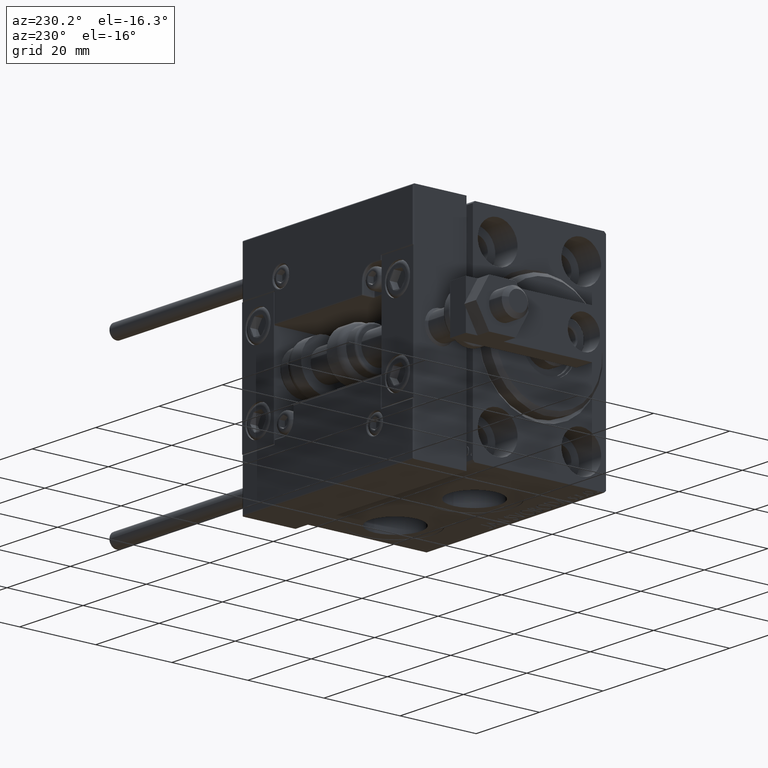
[diagram: clean part render]
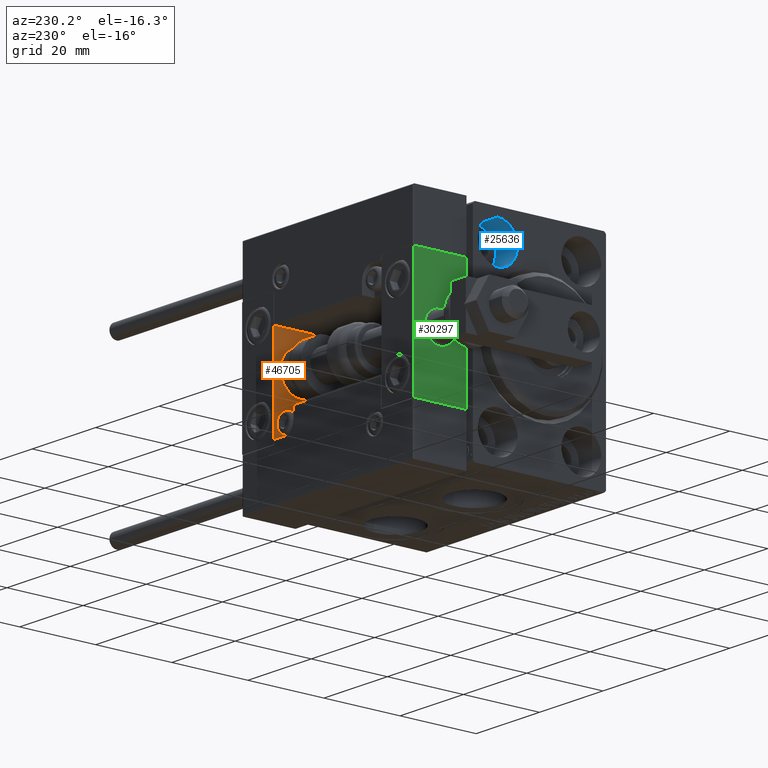
[diagram: same view with three faces highlighted in distinct colors, each labeled with its STEP entity id]
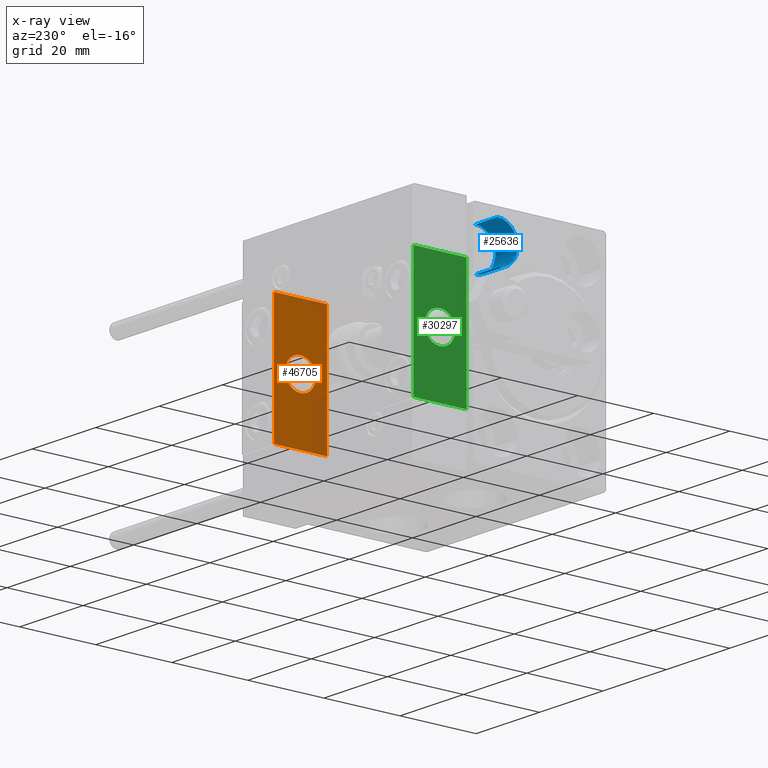
[diagram: x-ray of the same camera — body ghosted, the three highlighted faces saturated]
A machine part, auxiliary view with three faces highlighted in distinct colors.
The next image is the same camera in x-ray (body ghosted, the three faces saturated) — at least one of them is partly hidden behind the body in this view.
Their STEP definitions:

[orange] entity #46705 — the highlighted planar face has unit normal (-1, 0, 0).
#631 = LINE ( 'NONE', #38596, #26015 ) ;
#1577 = DIRECTION ( 'NONE',  ( 0.000000000000000000, -1.000000000000000000, 0.000000000000000000 ) ) ;
#1627 = AXIS2_PLACEMENT_3D ( 'NONE', #7819, #42445, #15970 ) ;
#1809 = LINE ( 'NONE', #5895, #10365 ) ;
#1990 = VERTEX_POINT ( 'NONE', #35215 ) ;
#2172 = DIRECTION ( 'NONE',  ( 0.000000000000000000, 0.000000000000000000, 1.000000000000000000 ) ) ;
#3321 = EDGE_CURVE ( 'NONE', #36137, #13357, #20954, .T. ) ;
#4851 = EDGE_LOOP ( 'NONE', ( #7225, #38282, #43645, #31055 ) ) ;
#5124 = AXIS2_PLACEMENT_3D ( 'NONE', #5250, #47774, #2172 ) ;
#5250 = CARTESIAN_POINT ( 'NONE',  ( 0.000000000000000000, 0.000000000000000000, 0.000000000000000000 ) ) ;
#5895 = CARTESIAN_POINT ( 'NONE',  ( 0.000000000000000000, 7.000000000000000000, 15.99999999999999289 ) ) ;
#7225 = ORIENTED_EDGE ( 'NONE', *, *, #41617, .F. ) ;
#7545 = EDGE_CURVE ( 'NONE', #45838, #21953, #27092, .T. ) ;
#7819 = CARTESIAN_POINT ( 'NONE',  ( 0.000000000000000000, 0.000000000000000000, 0.000000000000000000 ) ) ;
#8109 = FACE_BOUND ( 'NONE', #37077, .T. ) ;
#8770 = CARTESIAN_POINT ( 'NONE',  ( 0.000000000000000000, 7.000000000000000000, -16.00000000000000711 ) ) ;
#9559 = CARTESIAN_POINT ( 'NONE',  ( 0.000000000000000000, 0.000000000000000000, 4.000000000000000000 ) ) ;
#10027 = CARTESIAN_POINT ( 'NONE',  ( 0.000000000000000000, 4.898587196589412829E-16, -4.000000000000000000 ) ) ;
#10365 = VECTOR ( 'NONE', #25768, 1000.000000000000000 ) ;
#13357 = VERTEX_POINT ( 'NONE', #38426 ) ;
#15746 = DIRECTION ( 'NONE',  ( -0.000000000000000000, 0.000000000000000000, 1.000000000000000000 ) ) ;
#15958 = ORIENTED_EDGE ( 'NONE', *, *, #31482, .F. ) ;
#15970 = DIRECTION ( 'NONE',  ( 0.000000000000000000, 0.000000000000000000, 1.000000000000000000 ) ) ;
#19004 = AXIS2_PLACEMENT_3D ( 'NONE', #34836, #31269, #15746 ) ;
#19316 = FACE_OUTER_BOUND ( 'NONE', #4851, .T. ) ;
#19745 = DIRECTION ( 'NONE',  ( 0.000000000000000000, -1.000000000000000000, 0.000000000000000000 ) ) ;
#20083 = EDGE_CURVE ( 'NONE', #1990, #36137, #1809, .T. ) ;
#20954 = LINE ( 'NONE', #8770, #39332 ) ;
#21953 = VERTEX_POINT ( 'NONE', #9559 ) ;
#22882 = VERTEX_POINT ( 'NONE', #35377 ) ;
#25768 = DIRECTION ( 'NONE',  ( 0.000000000000000000, 0.000000000000000000, -1.000000000000000000 ) ) ;
#26015 = VECTOR ( 'NONE', #19745, 1000.000000000000000 ) ;
#26948 = PLANE ( 'NONE',  #19004 ) ;
#27092 = CIRCLE ( 'NONE', #5124, 4.000000000000000000 ) ;
#27692 = DIRECTION ( 'NONE',  ( 0.000000000000000000, 0.000000000000000000, -1.000000000000000000 ) ) ;
#30759 = EDGE_CURVE ( 'NONE', #1990, #22882, #631, .T. ) ;
#31055 = ORIENTED_EDGE ( 'NONE', *, *, #3321, .T. ) ;
#31269 = DIRECTION ( 'NONE',  ( -1.000000000000000000, 0.000000000000000000, -0.000000000000000000 ) ) ;
#31482 = EDGE_CURVE ( 'NONE', #21953, #45838, #45566, .T. ) ;
#31832 = VECTOR ( 'NONE', #27692, 1000.000000000000000 ) ;
#34836 = CARTESIAN_POINT ( 'NONE',  ( 0.000000000000000000, 0.000000000000000000, 0.000000000000000000 ) ) ;
#35215 = CARTESIAN_POINT ( 'NONE',  ( 0.000000000000000000, 7.000000000000000000, 15.99999999999999289 ) ) ;
#35377 = CARTESIAN_POINT ( 'NONE',  ( 0.000000000000000000, -7.000000000000000000, 15.99999999999999289 ) ) ;
#35589 = ORIENTED_EDGE ( 'NONE', *, *, #7545, .F. ) ;
#36137 = VERTEX_POINT ( 'NONE', #44043 ) ;
#36556 = CARTESIAN_POINT ( 'NONE',  ( 0.000000000000000000, -7.000000000000000000, 15.99999999999999289 ) ) ;
#37077 = EDGE_LOOP ( 'NONE', ( #15958, #35589 ) ) ;
#38282 = ORIENTED_EDGE ( 'NONE', *, *, #30759, .F. ) ;
#38426 = CARTESIAN_POINT ( 'NONE',  ( 0.000000000000000000, -7.000000000000000000, -16.00000000000000711 ) ) ;
#38596 = CARTESIAN_POINT ( 'NONE',  ( 0.000000000000000000, 7.000000000000000000, 15.99999999999999289 ) ) ;
#39332 = VECTOR ( 'NONE', #1577, 1000.000000000000000 ) ;
#39660 = LINE ( 'NONE', #36556, #31832 ) ;
#41617 = EDGE_CURVE ( 'NONE', #22882, #13357, #39660, .T. ) ;
#42445 = DIRECTION ( 'NONE',  ( -1.000000000000000000, -0.000000000000000000, -0.000000000000000000 ) ) ;
#43645 = ORIENTED_EDGE ( 'NONE', *, *, #20083, .T. ) ;
#44043 = CARTESIAN_POINT ( 'NONE',  ( 0.000000000000000000, 7.000000000000000000, -16.00000000000000711 ) ) ;
#45566 = CIRCLE ( 'NONE', #1627, 4.000000000000000000 ) ;
#45838 = VERTEX_POINT ( 'NONE', #10027 ) ;
#46705 = ADVANCED_FACE ( 'NONE', ( #8109, #19316 ), #26948, .T. ) ;
#47774 = DIRECTION ( 'NONE',  ( -1.000000000000000000, -0.000000000000000000, -0.000000000000000000 ) ) ;

[blue] entity #25636 — the highlighted cylindrical surface (edge-blend (fillet) strip) has radius 5.25 mm, axis along (-1, -0, -0).
#348 = DIRECTION ( 'NONE',  ( 0.000000000000000000, 0.000000000000000000, 1.000000000000000000 ) ) ;
#1110 = VECTOR ( 'NONE', #14047, 1000.000000000000000 ) ;
#2325 = CARTESIAN_POINT ( 'NONE',  ( 7.000000000000000000, 11.00000000000000355, 25.25000000000000000 ) ) ;
#4890 = VERTEX_POINT ( 'NONE', #9017 ) ;
#5945 = ORIENTED_EDGE ( 'NONE', *, *, #18621, .T. ) ;
#8260 = DIRECTION ( 'NONE',  ( -1.000000000000000000, 0.000000000000000000, 0.000000000000000000 ) ) ;
#9017 = CARTESIAN_POINT ( 'NONE',  ( 7.000000000000000000, 11.00000000000000355, 25.25000000000000000 ) ) ;
#12203 = EDGE_LOOP ( 'NONE', ( #41874, #5945, #31602, #33152 ) ) ;
#12903 = EDGE_CURVE ( 'NONE', #4890, #13228, #40300, .T. ) ;
#13228 = VERTEX_POINT ( 'NONE', #17313 ) ;
#14047 = DIRECTION ( 'NONE',  ( -1.000000000000000000, -0.000000000000000000, -0.000000000000000000 ) ) ;
#16753 = FACE_OUTER_BOUND ( 'NONE', #12203, .T. ) ;
#17313 = CARTESIAN_POINT ( 'NONE',  ( 0.000000000000000000, 11.00000000000000355, 25.25000000000000000 ) ) ;
#18621 = EDGE_CURVE ( 'NONE', #22848, #42018, #29152, .T. ) ;
#18763 = EDGE_CURVE ( 'NONE', #22848, #4890, #28205, .T. ) ;
#21590 = EDGE_CURVE ( 'NONE', #42018, #13228, #44516, .T. ) ;
#22848 = VERTEX_POINT ( 'NONE', #38186 ) ;
#22966 = CARTESIAN_POINT ( 'NONE',  ( 0.000000000000000000, 11.00000000000000355, 20.00000000000000000 ) ) ;
#23797 = CARTESIAN_POINT ( 'NONE',  ( 7.000000000000000000, 11.00000000000000355, 20.00000000000000000 ) ) ;
#25636 = ADVANCED_FACE ( 'NONE', ( #16753 ), #48287, .F. ) ;
#25879 = AXIS2_PLACEMENT_3D ( 'NONE', #44230, #36580, #28691 ) ;
#27978 = CARTESIAN_POINT ( 'NONE',  ( 7.000000000000000000, 11.00000000000000355, 14.75000000000000000 ) ) ;
#28205 = CIRCLE ( 'NONE', #37134, 5.250000000000000888 ) ;
#28691 = DIRECTION ( 'NONE',  ( 0.000000000000000000, 0.000000000000000000, 1.000000000000000000 ) ) ;
#29152 = LINE ( 'NONE', #27978, #48500 ) ;
#30846 = DIRECTION ( 'NONE',  ( -1.000000000000000000, 0.000000000000000000, 0.000000000000000000 ) ) ;
#31602 = ORIENTED_EDGE ( 'NONE', *, *, #21590, .T. ) ;
#33152 = ORIENTED_EDGE ( 'NONE', *, *, #12903, .F. ) ;
#33981 = AXIS2_PLACEMENT_3D ( 'NONE', #22966, #30846, #46134 ) ;
#35615 = DIRECTION ( 'NONE',  ( -1.000000000000000000, -0.000000000000000000, -0.000000000000000000 ) ) ;
#36580 = DIRECTION ( 'NONE',  ( -1.000000000000000000, -0.000000000000000000, -0.000000000000000000 ) ) ;
#37134 = AXIS2_PLACEMENT_3D ( 'NONE', #23797, #8260, #348 ) ;
#38186 = CARTESIAN_POINT ( 'NONE',  ( 7.000000000000000000, 11.00000000000000355, 14.75000000000000000 ) ) ;
#40300 = LINE ( 'NONE', #2325, #1110 ) ;
#41874 = ORIENTED_EDGE ( 'NONE', *, *, #18763, .F. ) ;
#42018 = VERTEX_POINT ( 'NONE', #47721 ) ;
#44230 = CARTESIAN_POINT ( 'NONE',  ( 7.000000000000000000, 11.00000000000000355, 20.00000000000000000 ) ) ;
#44516 = CIRCLE ( 'NONE', #33981, 5.250000000000000888 ) ;
#46134 = DIRECTION ( 'NONE',  ( 0.000000000000000000, 0.000000000000000000, 1.000000000000000000 ) ) ;
#47721 = CARTESIAN_POINT ( 'NONE',  ( 0.000000000000000000, 11.00000000000000355, 14.75000000000000000 ) ) ;
#48287 = CYLINDRICAL_SURFACE ( 'NONE', #25879, 5.250000000000000888 ) ;
#48500 = VECTOR ( 'NONE', #35615, 1000.000000000000000 ) ;

[green] entity #30297 — the highlighted planar face has unit normal (1, 0, -0).
#3093 = ORIENTED_EDGE ( 'NONE', *, *, #21076, .F. ) ;
#5370 = CARTESIAN_POINT ( 'NONE',  ( 10.00000000000000000, 0.000000000000000000, 0.000000000000000000 ) ) ;
#5621 = ORIENTED_EDGE ( 'NONE', *, *, #40869, .T. ) ;
#6209 = VERTEX_POINT ( 'NONE', #26993 ) ;
#7041 = ORIENTED_EDGE ( 'NONE', *, *, #27838, .T. ) ;
#7371 = ORIENTED_EDGE ( 'NONE', *, *, #46675, .F. ) ;
#7595 = DIRECTION ( 'NONE',  ( 0.000000000000000000, 0.000000000000000000, -1.000000000000000000 ) ) ;
#10525 = LINE ( 'NONE', #29599, #30819 ) ;
#14113 = DIRECTION ( 'NONE',  ( 0.000000000000000000, -1.000000000000000000, 0.000000000000000000 ) ) ;
#14204 = CARTESIAN_POINT ( 'NONE',  ( 10.00000000000000000, -7.000000000000000000, 15.99999999999999289 ) ) ;
#16254 = DIRECTION ( 'NONE',  ( -1.000000000000000000, 0.000000000000000000, 0.000000000000000000 ) ) ;
#16731 = CARTESIAN_POINT ( 'NONE',  ( 10.00000000000000000, 0.000000000000000000, 4.000000000000000000 ) ) ;
#16833 = EDGE_LOOP ( 'NONE', ( #5621, #3093, #7371, #7041 ) ) ;
#17220 = VERTEX_POINT ( 'NONE', #26808 ) ;
#19666 = ORIENTED_EDGE ( 'NONE', *, *, #24479, .T. ) ;
#21076 = EDGE_CURVE ( 'NONE', #17220, #38688, #45437, .T. ) ;
#21240 = VECTOR ( 'NONE', #25160, 1000.000000000000000 ) ;
#22580 = AXIS2_PLACEMENT_3D ( 'NONE', #35835, #16254, #39679 ) ;
#24479 = EDGE_CURVE ( 'NONE', #26576, #50363, #42907, .T. ) ;
#25142 = CIRCLE ( 'NONE', #29236, 4.000000000000000000 ) ;
#25160 = DIRECTION ( 'NONE',  ( 0.000000000000000000, 0.000000000000000000, -1.000000000000000000 ) ) ;
#25169 = FACE_OUTER_BOUND ( 'NONE', #16833, .T. ) ;
#26169 = LINE ( 'NONE', #14204, #21240 ) ;
#26576 = VERTEX_POINT ( 'NONE', #34553 ) ;
#26808 = CARTESIAN_POINT ( 'NONE',  ( 10.00000000000000000, 7.000000000000000000, -16.00000000000000711 ) ) ;
#26993 = CARTESIAN_POINT ( 'NONE',  ( 10.00000000000000000, 7.000000000000000000, 15.99999999999999289 ) ) ;
#27199 = CARTESIAN_POINT ( 'NONE',  ( 10.00000000000000000, 7.000000000000000000, 15.99999999999999289 ) ) ;
#27838 = EDGE_CURVE ( 'NONE', #6209, #40742, #10525, .T. ) ;
#29236 = AXIS2_PLACEMENT_3D ( 'NONE', #5370, #36432, #48881 ) ;
#29599 = CARTESIAN_POINT ( 'NONE',  ( 10.00000000000000000, 7.000000000000000000, 15.99999999999999289 ) ) ;
#29882 = EDGE_CURVE ( 'NONE', #50363, #26576, #25142, .T. ) ;
#30297 = ADVANCED_FACE ( 'NONE', ( #40959, #25169 ), #48321, .F. ) ;
#30819 = VECTOR ( 'NONE', #48446, 1000.000000000000000 ) ;
#31910 = CARTESIAN_POINT ( 'NONE',  ( 10.00000000000000000, -7.000000000000000000, -16.00000000000000711 ) ) ;
#33137 = VECTOR ( 'NONE', #14113, 1000.000000000000000 ) ;
#33189 = ORIENTED_EDGE ( 'NONE', *, *, #29882, .T. ) ;
#34479 = VECTOR ( 'NONE', #7595, 1000.000000000000000 ) ;
#34553 = CARTESIAN_POINT ( 'NONE',  ( 10.00000000000000000, 4.898587196589412829E-16, -4.000000000000000000 ) ) ;
#34963 = AXIS2_PLACEMENT_3D ( 'NONE', #44270, #44521, #40206 ) ;
#35835 = CARTESIAN_POINT ( 'NONE',  ( 10.00000000000000000, 0.000000000000000000, 0.000000000000000000 ) ) ;
#36432 = DIRECTION ( 'NONE',  ( -1.000000000000000000, 0.000000000000000000, 0.000000000000000000 ) ) ;
#38448 = CARTESIAN_POINT ( 'NONE',  ( 10.00000000000000000, -7.000000000000000000, 15.99999999999999289 ) ) ;
#38648 = EDGE_LOOP ( 'NONE', ( #33189, #19666 ) ) ;
#38660 = LINE ( 'NONE', #27199, #34479 ) ;
#38688 = VERTEX_POINT ( 'NONE', #31910 ) ;
#39679 = DIRECTION ( 'NONE',  ( 0.000000000000000000, 0.000000000000000000, 1.000000000000000000 ) ) ;
#40206 = DIRECTION ( 'NONE',  ( -0.000000000000000000, 0.000000000000000000, 1.000000000000000000 ) ) ;
#40742 = VERTEX_POINT ( 'NONE', #38448 ) ;
#40869 = EDGE_CURVE ( 'NONE', #40742, #38688, #26169, .T. ) ;
#40959 = FACE_BOUND ( 'NONE', #38648, .T. ) ;
#42125 = CARTESIAN_POINT ( 'NONE',  ( 10.00000000000000000, 7.000000000000000000, -16.00000000000000711 ) ) ;
#42907 = CIRCLE ( 'NONE', #22580, 4.000000000000000000 ) ;
#44270 = CARTESIAN_POINT ( 'NONE',  ( 10.00000000000000000, 0.000000000000000000, 0.000000000000000000 ) ) ;
#44521 = DIRECTION ( 'NONE',  ( -1.000000000000000000, 0.000000000000000000, -0.000000000000000000 ) ) ;
#45437 = LINE ( 'NONE', #42125, #33137 ) ;
#46675 = EDGE_CURVE ( 'NONE', #6209, #17220, #38660, .T. ) ;
#48321 = PLANE ( 'NONE',  #34963 ) ;
#48446 = DIRECTION ( 'NONE',  ( 0.000000000000000000, -1.000000000000000000, 0.000000000000000000 ) ) ;
#48881 = DIRECTION ( 'NONE',  ( 0.000000000000000000, 0.000000000000000000, 1.000000000000000000 ) ) ;
#50363 = VERTEX_POINT ( 'NONE', #16731 ) ;